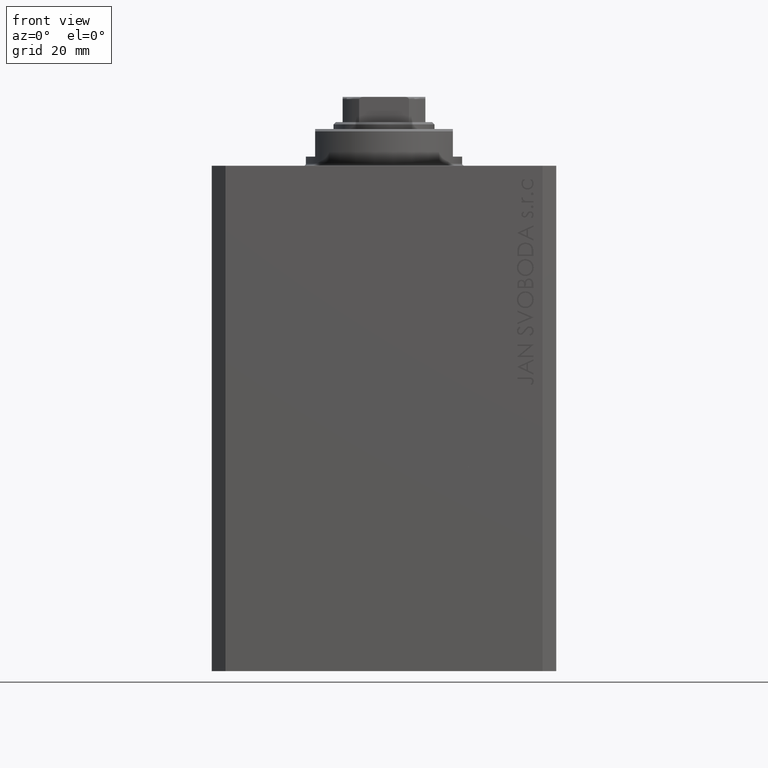
[diagram: clean part render]
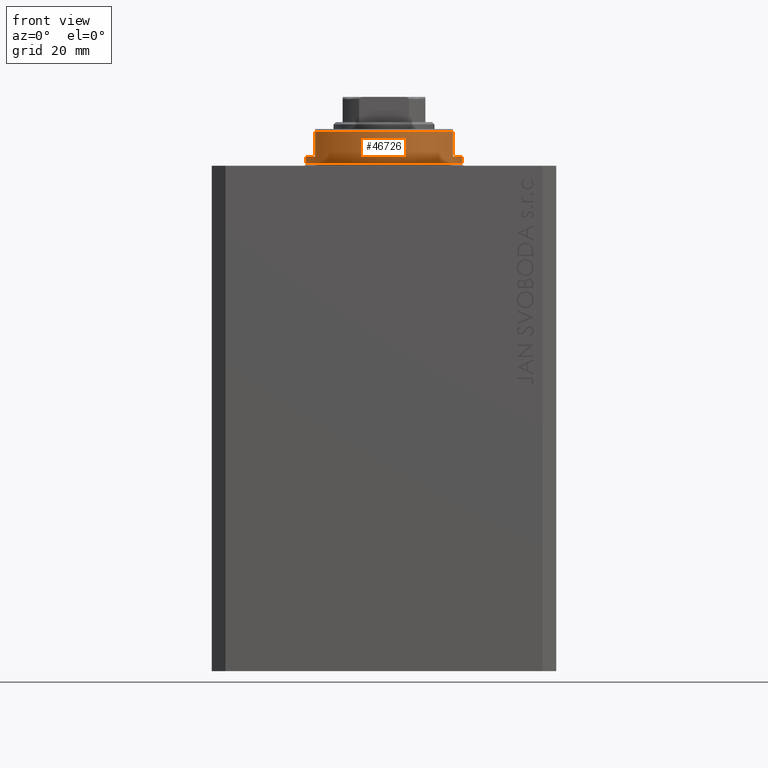
[diagram: same view with one face highlighted and labeled with its STEP entity id]
A machine part, front view. The second image highlights one B-rep face of the part: STEP entity #46726.
In plain terms, the highlighted cylindrical surface (partial cylindrical patch) has radius 17 mm, axis along (0, 0, -1).
Its self-contained STEP definition (entity closure, byte-faithful):
#921 = FACE_OUTER_BOUND ( 'NONE', #29893, .T. ) ;
#1152 = EDGE_CURVE ( 'NONE', #40956, #5242, #10548, .T. ) ;
#1980 = DIRECTION ( 'NONE',  ( -1.000000000000000000, 0.000000000000000000, 0.000000000000000000 ) ) ;
#2494 = ORIENTED_EDGE ( 'NONE', *, *, #16833, .F. ) ;
#2836 = VECTOR ( 'NONE', #31816, 1000.000000000000000 ) ;
#2964 = ORIENTED_EDGE ( 'NONE', *, *, #9624, .T. ) ;
#4048 = DIRECTION ( 'NONE',  ( -1.000000000000000000, 0.000000000000000000, 0.000000000000000000 ) ) ;
#4338 = EDGE_CURVE ( 'NONE', #17412, #9316, #32438, .T. ) ;
#4883 = EDGE_CURVE ( 'NONE', #45995, #17412, #38755, .T. ) ;
#4901 = AXIS2_PLACEMENT_3D ( 'NONE', #46039, #38624, #1980 ) ;
#5242 = VERTEX_POINT ( 'NONE', #13730 ) ;
#5706 = ORIENTED_EDGE ( 'NONE', *, *, #1152, .F. ) ;
#9316 = VERTEX_POINT ( 'NONE', #31573 ) ;
#9624 = EDGE_CURVE ( 'NONE', #31163, #28283, #31194, .T. ) ;
#10548 = CIRCLE ( 'NONE', #47250, 17.00000000000000000 ) ;
#10560 = AXIS2_PLACEMENT_3D ( 'NONE', #24980, #13483, #32403 ) ;
#10569 = ORIENTED_EDGE ( 'NONE', *, *, #27146, .F. ) ;
#10607 = CARTESIAN_POINT ( 'NONE',  ( -17.00000000000000000, 2.081899558550500280E-15, -0.5000000000000004441 ) ) ;
#10915 = VECTOR ( 'NONE', #20711, 1000.000000000000000 ) ;
#11011 = AXIS2_PLACEMENT_3D ( 'NONE', #15747, #36623, #29444 ) ;
#13483 = DIRECTION ( 'NONE',  ( -0.000000000000000000, -0.000000000000000000, -1.000000000000000000 ) ) ;
#13730 = CARTESIAN_POINT ( 'NONE',  ( 14.99999999999999645, -8.000000000000003553, -2.000000000000000000 ) ) ;
#14253 = CIRCLE ( 'NONE', #28035, 17.00000000000000000 ) ;
#15633 = LINE ( 'NONE', #44846, #37224 ) ;
#15747 = CARTESIAN_POINT ( 'NONE',  ( 0.000000000000000000, 0.000000000000000000, -8.000000000000000000 ) ) ;
#16833 = EDGE_CURVE ( 'NONE', #45995, #24635, #14253, .T. ) ;
#17112 = CARTESIAN_POINT ( 'NONE',  ( -17.00000000000000000, 2.081899558550500280E-15, -8.000000000000000000 ) ) ;
#17412 = VERTEX_POINT ( 'NONE', #19767 ) ;
#17727 = EDGE_CURVE ( 'NONE', #40956, #31163, #15633, .T. ) ;
#19767 = CARTESIAN_POINT ( 'NONE',  ( -15.00000000000000000, -8.000000000000001776, -7.500000000000007105 ) ) ;
#19774 = CARTESIAN_POINT ( 'NONE',  ( 15.00000000000000000, -8.000000000000001776, -8.000000000000000000 ) ) ;
#20711 = DIRECTION ( 'NONE',  ( -0.000000000000000000, -0.000000000000000000, 1.000000000000000000 ) ) ;
#21518 = CARTESIAN_POINT ( 'NONE',  ( 0.000000000000000000, 0.000000000000000000, -2.000000000000000000 ) ) ;
#22035 = CYLINDRICAL_SURFACE ( 'NONE', #11011, 17.00000000000000000 ) ;
#22462 = DIRECTION ( 'NONE',  ( -1.000000000000000000, 0.000000000000000000, 0.000000000000000000 ) ) ;
#24635 = VERTEX_POINT ( 'NONE', #44074 ) ;
#24980 = CARTESIAN_POINT ( 'NONE',  ( 0.000000000000000000, 0.000000000000000000, -0.5000000000000004441 ) ) ;
#25063 = CARTESIAN_POINT ( 'NONE',  ( -14.99999999999999645, -8.000000000000003553, -2.000000000000000000 ) ) ;
#26862 = CARTESIAN_POINT ( 'NONE',  ( 17.00000000000000000, 0.000000000000000000, -2.000000000000000000 ) ) ;
#27146 = EDGE_CURVE ( 'NONE', #5242, #9316, #37953, .T. ) ;
#28035 = AXIS2_PLACEMENT_3D ( 'NONE', #29202, #46914, #4048 ) ;
#28128 = LINE ( 'NONE', #17112, #10915 ) ;
#28283 = VERTEX_POINT ( 'NONE', #10607 ) ;
#29202 = CARTESIAN_POINT ( 'NONE',  ( 0.000000000000000000, 0.000000000000000000, -2.000000000000000000 ) ) ;
#29444 = DIRECTION ( 'NONE',  ( 1.000000000000000000, 0.000000000000000000, 0.000000000000000000 ) ) ;
#29698 = CARTESIAN_POINT ( 'NONE',  ( 17.00000000000000000, 0.000000000000000000, -0.5000000000000004441 ) ) ;
#29893 = EDGE_LOOP ( 'NONE', ( #46539, #2494, #43380, #30358, #10569, #5706, #34044, #2964 ) ) ;
#30260 = DIRECTION ( 'NONE',  ( -0.000000000000000000, -0.000000000000000000, 1.000000000000000000 ) ) ;
#30358 = ORIENTED_EDGE ( 'NONE', *, *, #4338, .T. ) ;
#31163 = VERTEX_POINT ( 'NONE', #29698 ) ;
#31194 = CIRCLE ( 'NONE', #10560, 17.00000000000000000 ) ;
#31573 = CARTESIAN_POINT ( 'NONE',  ( 15.00000000000000000, -8.000000000000001776, -7.500000000000007105 ) ) ;
#31816 = DIRECTION ( 'NONE',  ( 0.000000000000000000, 0.000000000000000000, -1.000000000000000000 ) ) ;
#32403 = DIRECTION ( 'NONE',  ( 1.000000000000000000, 0.000000000000000000, 0.000000000000000000 ) ) ;
#32438 = CIRCLE ( 'NONE', #4901, 17.00000000000000000 ) ;
#34044 = ORIENTED_EDGE ( 'NONE', *, *, #17727, .T. ) ;
#34813 = VECTOR ( 'NONE', #35084, 1000.000000000000000 ) ;
#35084 = DIRECTION ( 'NONE',  ( 0.000000000000000000, 0.000000000000000000, -1.000000000000000000 ) ) ;
#36623 = DIRECTION ( 'NONE',  ( -0.000000000000000000, -0.000000000000000000, 1.000000000000000000 ) ) ;
#37224 = VECTOR ( 'NONE', #30260, 1000.000000000000000 ) ;
#37953 = LINE ( 'NONE', #19774, #34813 ) ;
#38624 = DIRECTION ( 'NONE',  ( 0.000000000000000000, 0.000000000000000000, 1.000000000000000000 ) ) ;
#38755 = LINE ( 'NONE', #39238, #2836 ) ;
#39238 = CARTESIAN_POINT ( 'NONE',  ( -15.00000000000000000, -8.000000000000001776, -8.000000000000000000 ) ) ;
#40692 = EDGE_CURVE ( 'NONE', #24635, #28283, #28128, .T. ) ;
#40956 = VERTEX_POINT ( 'NONE', #26862 ) ;
#43380 = ORIENTED_EDGE ( 'NONE', *, *, #4883, .T. ) ;
#44074 = CARTESIAN_POINT ( 'NONE',  ( -17.00000000000000000, 2.081899558550500280E-15, -2.000000000000000000 ) ) ;
#44260 = DIRECTION ( 'NONE',  ( 0.000000000000000000, 0.000000000000000000, -1.000000000000000000 ) ) ;
#44846 = CARTESIAN_POINT ( 'NONE',  ( 17.00000000000000000, 0.000000000000000000, -8.000000000000000000 ) ) ;
#45995 = VERTEX_POINT ( 'NONE', #25063 ) ;
#46039 = CARTESIAN_POINT ( 'NONE',  ( 0.000000000000000000, 0.000000000000000000, -7.500000000000007105 ) ) ;
#46539 = ORIENTED_EDGE ( 'NONE', *, *, #40692, .F. ) ;
#46726 = ADVANCED_FACE ( 'NONE', ( #921 ), #22035, .T. ) ;
#46914 = DIRECTION ( 'NONE',  ( 0.000000000000000000, 0.000000000000000000, -1.000000000000000000 ) ) ;
#47250 = AXIS2_PLACEMENT_3D ( 'NONE', #21518, #44260, #22462 ) ;